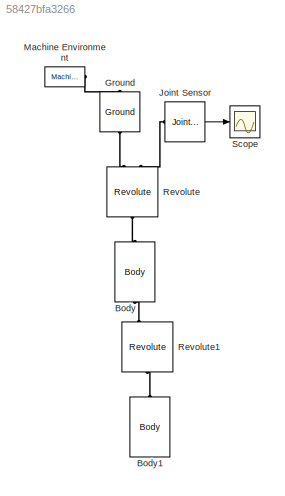
MODEL slx_58427bfa3266
KIND model
CONFIG AbsTol = auto
CONFIG EnableMultiTasking = on
CONFIG FixedStep = auto
CONFIG InitFcn = m = 1;\nl = 10;
CONFIG MaxStep = auto
CONFIG MinStep = auto
CONFIG RelTol = 1e-3
CONFIG SampleTimeConstraint = Unconstrained
CONFIG Solver = ode45
CONFIG SolverName = ode45
CONFIG StartTime = 0.0
CONFIG StopTime = 10.0
BLOCK [Reference] Body  REF=mblibv1/Bodies/Body
  Ports = [0, 0, 0, 0, 0, 1, 1]
  SourceBlock = mblibv1/Bodies/Body
  SourceProductBaseCode = MS
  SourceProductName = Simscape Multibody
  SourceType = Body
BLOCK [Reference] Body1  REF=mblibv1/Bodies/Body
  Ports = [0, 0, 0, 0, 0, 1, 1]
  SourceBlock = mblibv1/Bodies/Body
  SourceProductBaseCode = MS
  SourceProductName = Simscape Multibody
  SourceType = Body
BLOCK [Reference] Ground  REF=mblibv1/Bodies/Ground
  Ports = [0, 0, 0, 0, 0, 1, 1]
  SourceBlock = mblibv1/Bodies/Ground
  SourceProductBaseCode = MS
  SourceProductName = Simscape Multibody
  SourceType = Ground
  UserDataPersistent = on
BLOCK [Reference] Joint Sensor  REF=mblibv1/Sensors & 
Actuators/Joint Sensor
  Ports = [0, 1, 0, 0, 0, 1]
  SourceBlock = mblibv1/Sensors & \nActuators/Joint Sensor
  SourceProductBaseCode = MS
  SourceProductName = Simscape Multibody
  SourceType = Joint Sensor
BLOCK [Reference] Machine Environment  REF=mblibv1/Bodies/Machine
Environment
  Ports = [0, 0, 0, 0, 0, 0, 1]
  SourceBlock = mblibv1/Bodies/Machine\nEnvironment
  SourceProductBaseCode = MS
  SourceProductName = Simscape Multibody
  SourceType = Machine Environment
  Tag = Factory ground
BLOCK [Reference] Revolute  REF=mblibv1/Joints/Revolute
  Ports = [0, 0, 0, 0, 0, 2, 1]
  SourceBlock = mblibv1/Joints/Revolute
  SourceProductBaseCode = MS
  SourceProductName = Simscape Multibody
  SourceType = Revolute
BLOCK [Reference] Revolute1  REF=mblibv1/Joints/Revolute
  Ports = [0, 0, 0, 0, 0, 2, 1]
  SourceBlock = mblibv1/Joints/Revolute
  SourceProductBaseCode = MS
  SourceProductName = Simscape Multibody
  SourceType = Revolute
BLOCK [Scope] Scope
  Floating = off
  NumInputPorts = 1
  Ports = [1]
  ScopeSpecificationString = Simulink.scopes.TimeScopeBlockCfg('CurrentConfiguration', extmgr.ConfigurationSet(extmgr.Configuration('Core','General UI',true),extmgr.Configuration('Core','Source UI',true),extmgr.Configuration('Sources','WiredSimulink',true,'DataLoggingSaveFormat','StructureWithTime','DataLoggingLimitDataPoints',true,'DataLoggingDecimation','1'),extmgr.Configuration('Visuals','Time Domain',true,'SerializedDispl...<+1608ch>
LINE Joint Sensor:1 -> Scope:1
PLINE Body1:LConn1 -- Revolute1:RConn1
PLINE Body:LConn1 -- Revolute:RConn1
PLINE Body:RConn1 -- Revolute1:LConn1
PLINE Ground:LConn1 -- Machine Environment:RConn1
PLINE Ground:RConn1 -- Revolute:LConn1
PLINE Joint Sensor:LConn1 -- Revolute:LConn2
